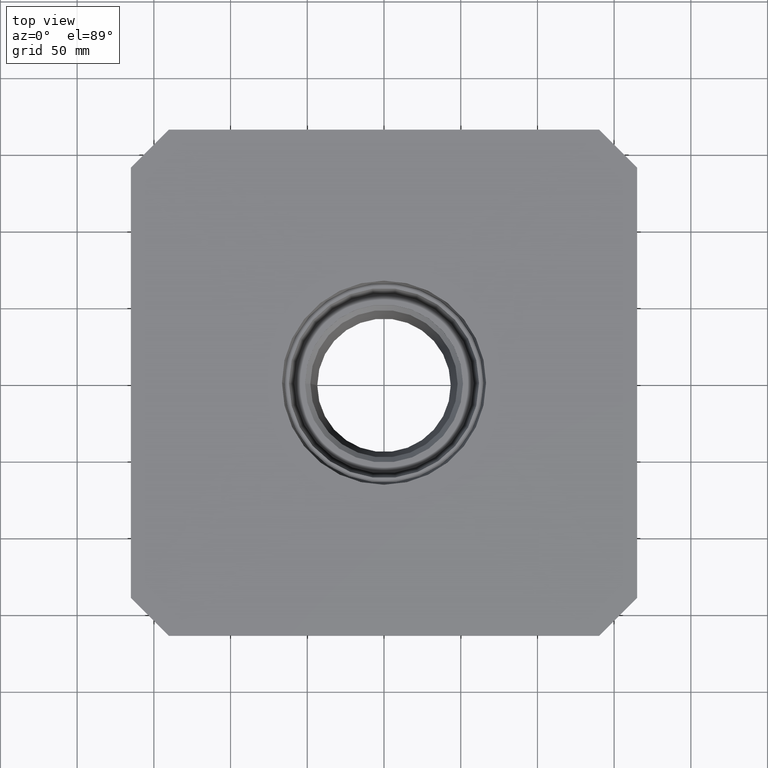
[diagram: clean part render]
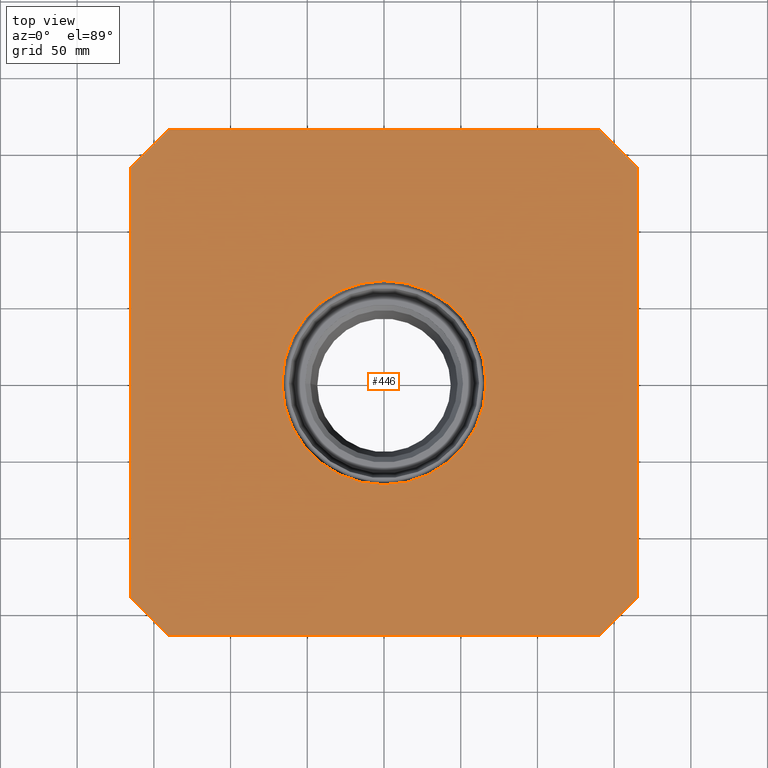
[diagram: same view with one face highlighted and labeled with its STEP entity id]
A machine part, top view. The second image highlights one B-rep face of the part: STEP entity #446.
In plain terms, the highlighted planar face has unit normal (-0, 0, 1).
Its self-contained STEP definition (entity closure, byte-faithful):
#31=CIRCLE('',#469,66.5);
#145=ORIENTED_EDGE('',*,*,#177,.F.);
#146=ORIENTED_EDGE('',*,*,#154,.T.);
#147=ORIENTED_EDGE('',*,*,#158,.T.);
#148=ORIENTED_EDGE('',*,*,#161,.T.);
#149=ORIENTED_EDGE('',*,*,#164,.T.);
#150=ORIENTED_EDGE('',*,*,#167,.T.);
#151=ORIENTED_EDGE('',*,*,#170,.T.);
#152=ORIENTED_EDGE('',*,*,#173,.T.);
#153=ORIENTED_EDGE('',*,*,#178,.T.);
#154=EDGE_CURVE('',#201,#202,#240,.T.);
#158=EDGE_CURVE('',#202,#205,#244,.T.);
#161=EDGE_CURVE('',#205,#207,#247,.T.);
#164=EDGE_CURVE('',#207,#209,#250,.T.);
#167=EDGE_CURVE('',#209,#211,#253,.T.);
#170=EDGE_CURVE('',#211,#213,#256,.T.);
#173=EDGE_CURVE('',#213,#215,#259,.T.);
#177=EDGE_CURVE('',#218,#218,#31,.T.);
#178=EDGE_CURVE('',#215,#201,#262,.T.);
#201=VERTEX_POINT('',#654);
#202=VERTEX_POINT('',#655);
#205=VERTEX_POINT('',#663);
#207=VERTEX_POINT('',#669);
#209=VERTEX_POINT('',#675);
#211=VERTEX_POINT('',#681);
#213=VERTEX_POINT('',#687);
#215=VERTEX_POINT('',#693);
#218=VERTEX_POINT('',#701);
#240=LINE('',#653,#264);
#244=LINE('',#662,#268);
#247=LINE('',#668,#271);
#250=LINE('',#674,#274);
#253=LINE('',#680,#277);
#256=LINE('',#686,#280);
#259=LINE('',#692,#283);
#262=LINE('',#703,#286);
#264=VECTOR('',#519,1000.);
#268=VECTOR('',#525,1000.);
#271=VECTOR('',#530,1000.);
#274=VECTOR('',#535,1000.);
#277=VECTOR('',#540,1000.);
#280=VECTOR('',#545,1000.);
#283=VECTOR('',#550,1000.);
#286=VECTOR('',#561,1000.);
#342=EDGE_LOOP('',(#145));
#343=EDGE_LOOP('',(#146,#147,#148,#149,#150,#151,#152,#153));
#398=FACE_BOUND('',#342,.T.);
#399=FACE_BOUND('',#343,.T.);
#414=PLANE('',#514);
#446=ADVANCED_FACE('',(#398,#399),#414,.T.);
#469=AXIS2_PLACEMENT_3D('',#700,#557,#558);
#514=AXIS2_PLACEMENT_3D('',#769,#649,#650);
#519=DIRECTION('',(0.,-1.,0.));
#525=DIRECTION('',(0.707106781186548,-0.707106781186548,1.35290595589709E-18));
#530=DIRECTION('',(1.,0.,1.91329795144501E-18));
#535=DIRECTION('',(0.707106781186548,0.707106781186548,1.35290595589709E-18));
#540=DIRECTION('',(0.,1.,0.));
#545=DIRECTION('',(-0.707106781186548,0.707106781186548,-1.35290595589709E-18));
#550=DIRECTION('',(-1.,0.,-1.91329795144501E-18));
#557=DIRECTION('',(-1.91329795144501E-18,0.,1.));
#558=DIRECTION('',(1.,0.,1.91329795144501E-18));
#561=DIRECTION('',(-0.707106781186548,-0.707106781186548,-1.35290595589709E-18));
#649=DIRECTION('',(-1.91329795144501E-18,0.,1.));
#650=DIRECTION('',(1.,0.,1.91329795144501E-18));
#653=CARTESIAN_POINT('',(-165.,140.251262658471,1.3));
#654=CARTESIAN_POINT('',(-165.,140.251262658471,1.3));
#655=CARTESIAN_POINT('',(-165.,-140.251262658471,1.3));
#662=CARTESIAN_POINT('',(-165.,-140.251262658471,1.3));
#663=CARTESIAN_POINT('',(-140.251262658471,-165.,1.3));
#668=CARTESIAN_POINT('',(-140.251262658471,-165.,1.3));
#669=CARTESIAN_POINT('',(140.251262658471,-165.,1.3));
#674=CARTESIAN_POINT('',(140.251262658471,-165.,1.3));
#675=CARTESIAN_POINT('',(165.,-140.251262658471,1.3));
#680=CARTESIAN_POINT('',(165.,-140.251262658471,1.3));
#681=CARTESIAN_POINT('',(165.,140.251262658471,1.3));
#686=CARTESIAN_POINT('',(165.,140.251262658471,1.3));
#687=CARTESIAN_POINT('',(140.251262658471,165.,1.3));
#692=CARTESIAN_POINT('',(140.251262658471,165.,1.3));
#693=CARTESIAN_POINT('',(-140.251262658471,165.,1.3));
#700=CARTESIAN_POINT('',(0.,0.,1.3));
#701=CARTESIAN_POINT('',(66.5,0.,1.3));
#703=CARTESIAN_POINT('',(-140.251262658471,165.,1.3));
#769=CARTESIAN_POINT('',(170.,170.,1.3));